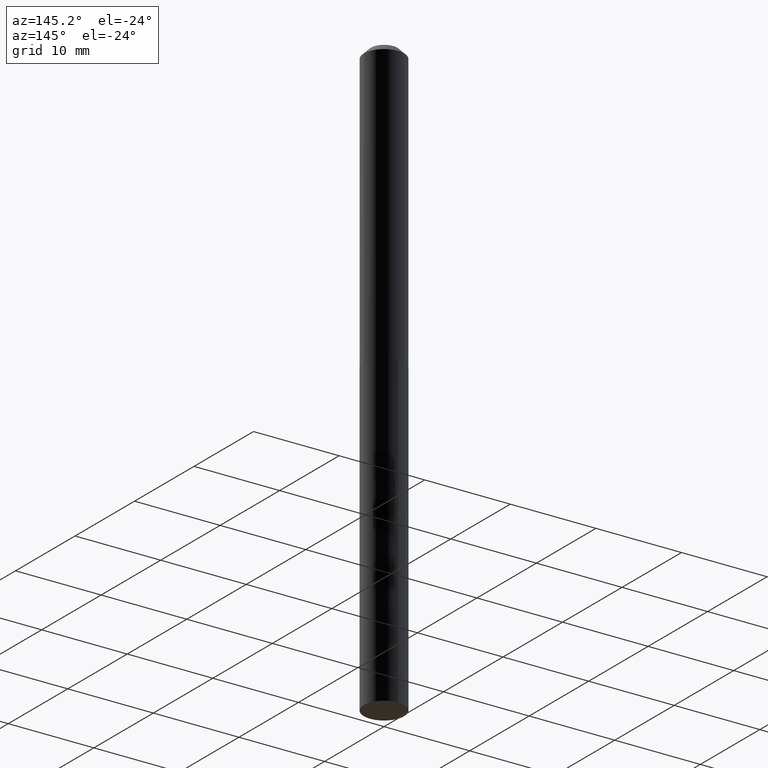
[diagram: clean part render]
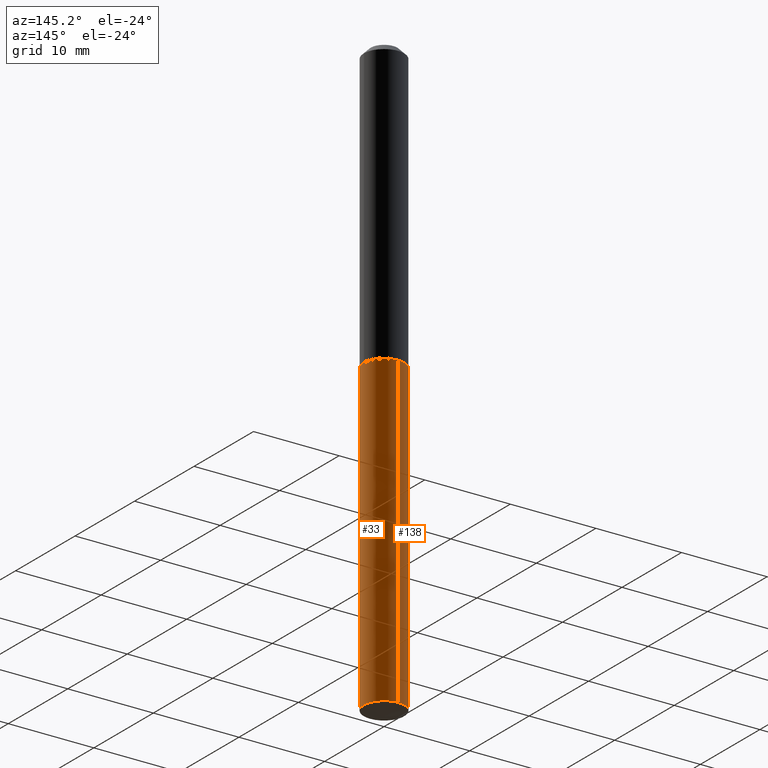
[diagram: same view with one multi-face feature highlighted, each face labeled with its STEP entity id]
A machine part, auxiliary view. The highlighted faces form ONE feature: a constant-radius fillet chain: 2 tangent blend faces with common blend radius 2.3495 mm. The faces share edges in the B-rep.
Their STEP definitions:
[1] entity #33 (Cylinder):
#3 = AXIS2_PLACEMENT_3D ( 'NONE', #276, #218, #95 ) ;
#6 = CARTESIAN_POINT ( 'NONE',  ( -6.459240476859475444E-16, -0.09250000000000457856, -1.309999999999999609 ) ) ;
#13 = DIRECTION ( 'NONE',  ( -2.445429496775872932E-29, 3.491537632154564086E-15, 1.000000000000000000 ) ) ;
#17 = CARTESIAN_POINT ( 'NONE',  ( 3.203564136102528897E-29, -4.573840553884520788E-15, -1.310000000000000053 ) ) ;
#18 = CIRCLE ( 'NONE', #41, 0.09249999999999999889 ) ;
#31 = CYLINDRICAL_SURFACE ( 'NONE', #3, 0.09249999999999999889 ) ;
#33 = ADVANCED_FACE ( 'NONE', ( #92 ), #31, .T. ) ;
#37 = EDGE_CURVE ( 'NONE', #248, #314, #189, .T. ) ;
#41 = AXIS2_PLACEMENT_3D ( 'NONE', #258, #13, #206 ) ;
#55 = EDGE_CURVE ( 'NONE', #210, #59, #279, .T. ) ;
#59 = VERTEX_POINT ( 'NONE', #304 ) ;
#61 = CARTESIAN_POINT ( 'NONE',  ( -6.459240476859475444E-16, -0.09250000000000457856, -1.309999999999999609 ) ) ;
#68 = AXIS2_PLACEMENT_3D ( 'NONE', #17, #378, #253 ) ;
#69 = ORIENTED_EDGE ( 'NONE', *, *, #222, .T. ) ;
#71 = DIRECTION ( 'NONE',  ( -2.445429496775872932E-29, 3.491537632154564086E-15, 1.000000000000000000 ) ) ;
#92 = FACE_OUTER_BOUND ( 'NONE', #155, .T. ) ;
#95 = DIRECTION ( 'NONE',  ( -6.982962677686265922E-15, -1.000000000000000000, 2.953349182339743999E-15 ) ) ;
#98 = CIRCLE ( 'NONE', #68, 0.09249999999999999889 ) ;
#108 = CARTESIAN_POINT ( 'NONE',  ( -6.459240476859128345E-16, -0.09250000000000949130, -2.725214699700120757 ) ) ;
#134 = VECTOR ( 'NONE', #71, 39.37007874015748143 ) ;
#155 = EDGE_LOOP ( 'NONE', ( #69, #224, #312, #339 ) ) ;
#160 = DIRECTION ( 'NONE',  ( -2.445429496775872932E-29, 3.491537632154564086E-15, 1.000000000000000000 ) ) ;
#167 = EDGE_CURVE ( 'NONE', #314, #59, #98, .T. ) ;
#189 = LINE ( 'NONE', #6, #348 ) ;
#206 = DIRECTION ( 'NONE',  ( -6.982962677686265922E-15, -1.000000000000000000, 5.906698364679487997E-15 ) ) ;
#210 = VERTEX_POINT ( 'NONE', #229 ) ;
#218 = DIRECTION ( 'NONE',  ( -2.445429496775872932E-29, 3.491537632154564086E-15, 1.000000000000000000 ) ) ;
#222 = EDGE_CURVE ( 'NONE', #248, #210, #18, .T. ) ;
#224 = ORIENTED_EDGE ( 'NONE', *, *, #55, .T. ) ;
#229 = CARTESIAN_POINT ( 'NONE',  ( 6.572520305781590270E-16, 0.09249999999999047873, -2.725214699700122090 ) ) ;
#248 = VERTEX_POINT ( 'NONE', #108 ) ;
#253 = DIRECTION ( 'NONE',  ( -6.982962677686265922E-15, -1.000000000000000000, 2.953349182339743999E-15 ) ) ;
#258 = CARTESIAN_POINT ( 'NONE',  ( 6.664371907020014015E-29, -9.515115935465815884E-15, -2.725214699700121646 ) ) ;
#276 = CARTESIAN_POINT ( 'NONE',  ( 3.203564136102528897E-29, -4.573840553884520788E-15, -1.310000000000000053 ) ) ;
#279 = LINE ( 'NONE', #283, #134 ) ;
#283 = CARTESIAN_POINT ( 'NONE',  ( 6.572520305781246129E-16, 0.09249999999999543310, -1.310000000000000275 ) ) ;
#304 = CARTESIAN_POINT ( 'NONE',  ( 6.572520305781594214E-16, 0.09249999999999543310, -1.310000000000000275 ) ) ;
#312 = ORIENTED_EDGE ( 'NONE', *, *, #167, .F. ) ;
#314 = VERTEX_POINT ( 'NONE', #61 ) ;
#339 = ORIENTED_EDGE ( 'NONE', *, *, #37, .F. ) ;
#348 = VECTOR ( 'NONE', #160, 39.37007874015748143 ) ;
#378 = DIRECTION ( 'NONE',  ( -2.445429496775872932E-29, 3.491537632154564086E-15, 1.000000000000000000 ) ) ;
[2] entity #138 (Cylinder):
#6 = CARTESIAN_POINT ( 'NONE',  ( -6.459240476859475444E-16, -0.09250000000000457856, -1.309999999999999609 ) ) ;
#10 = EDGE_CURVE ( 'NONE', #59, #314, #199, .T. ) ;
#35 = DIRECTION ( 'NONE',  ( -6.982962677686265922E-15, -1.000000000000000000, 2.953349182339743999E-15 ) ) ;
#37 = EDGE_CURVE ( 'NONE', #248, #314, #189, .T. ) ;
#55 = EDGE_CURVE ( 'NONE', #210, #59, #279, .T. ) ;
#59 = VERTEX_POINT ( 'NONE', #304 ) ;
#61 = CARTESIAN_POINT ( 'NONE',  ( -6.459240476859475444E-16, -0.09250000000000457856, -1.309999999999999609 ) ) ;
#62 = ORIENTED_EDGE ( 'NONE', *, *, #37, .T. ) ;
#66 = DIRECTION ( 'NONE',  ( -2.445429496775872932E-29, 3.491537632154564086E-15, 1.000000000000000000 ) ) ;
#71 = DIRECTION ( 'NONE',  ( -2.445429496775872932E-29, 3.491537632154564086E-15, 1.000000000000000000 ) ) ;
#105 = AXIS2_PLACEMENT_3D ( 'NONE', #221, #366, #35 ) ;
#108 = CARTESIAN_POINT ( 'NONE',  ( -6.459240476859128345E-16, -0.09250000000000949130, -2.725214699700120757 ) ) ;
#109 = FACE_OUTER_BOUND ( 'NONE', #242, .T. ) ;
#121 = DIRECTION ( 'NONE',  ( -6.982962677686265922E-15, -1.000000000000000000, 5.906698364679487997E-15 ) ) ;
#134 = VECTOR ( 'NONE', #71, 39.37007874015748143 ) ;
#138 = ADVANCED_FACE ( 'NONE', ( #109 ), #356, .T. ) ;
#140 = CIRCLE ( 'NONE', #315, 0.09249999999999999889 ) ;
#147 = ORIENTED_EDGE ( 'NONE', *, *, #10, .F. ) ;
#160 = DIRECTION ( 'NONE',  ( -2.445429496775872932E-29, 3.491537632154564086E-15, 1.000000000000000000 ) ) ;
#162 = ORIENTED_EDGE ( 'NONE', *, *, #55, .F. ) ;
#189 = LINE ( 'NONE', #6, #348 ) ;
#194 = AXIS2_PLACEMENT_3D ( 'NONE', #353, #379, #377 ) ;
#199 = CIRCLE ( 'NONE', #105, 0.09249999999999999889 ) ;
#210 = VERTEX_POINT ( 'NONE', #229 ) ;
#221 = CARTESIAN_POINT ( 'NONE',  ( 3.203564136102528897E-29, -4.573840553884520788E-15, -1.310000000000000053 ) ) ;
#229 = CARTESIAN_POINT ( 'NONE',  ( 6.572520305781590270E-16, 0.09249999999999047873, -2.725214699700122090 ) ) ;
#236 = CARTESIAN_POINT ( 'NONE',  ( 6.664371907020014015E-29, -9.515115935465815884E-15, -2.725214699700121646 ) ) ;
#242 = EDGE_LOOP ( 'NONE', ( #162, #298, #62, #147 ) ) ;
#248 = VERTEX_POINT ( 'NONE', #108 ) ;
#279 = LINE ( 'NONE', #283, #134 ) ;
#283 = CARTESIAN_POINT ( 'NONE',  ( 6.572520305781246129E-16, 0.09249999999999543310, -1.310000000000000275 ) ) ;
#298 = ORIENTED_EDGE ( 'NONE', *, *, #323, .T. ) ;
#304 = CARTESIAN_POINT ( 'NONE',  ( 6.572520305781594214E-16, 0.09249999999999543310, -1.310000000000000275 ) ) ;
#314 = VERTEX_POINT ( 'NONE', #61 ) ;
#315 = AXIS2_PLACEMENT_3D ( 'NONE', #236, #66, #121 ) ;
#323 = EDGE_CURVE ( 'NONE', #210, #248, #140, .T. ) ;
#348 = VECTOR ( 'NONE', #160, 39.37007874015748143 ) ;
#353 = CARTESIAN_POINT ( 'NONE',  ( 3.203564136102528897E-29, -4.573840553884520788E-15, -1.310000000000000053 ) ) ;
#356 = CYLINDRICAL_SURFACE ( 'NONE', #194, 0.09249999999999999889 ) ;
#366 = DIRECTION ( 'NONE',  ( -2.445429496775872932E-29, 3.491537632154564086E-15, 1.000000000000000000 ) ) ;
#377 = DIRECTION ( 'NONE',  ( -6.982962677686265922E-15, -1.000000000000000000, 2.953349182339743999E-15 ) ) ;
#379 = DIRECTION ( 'NONE',  ( -2.445429496775872932E-29, 3.491537632154564086E-15, 1.000000000000000000 ) ) ;